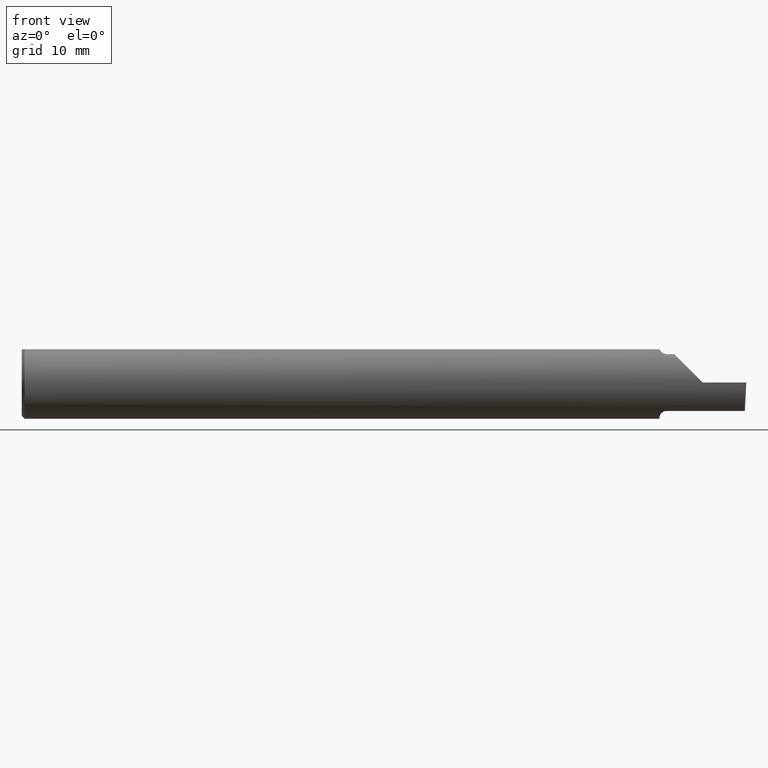
[diagram: clean part render]
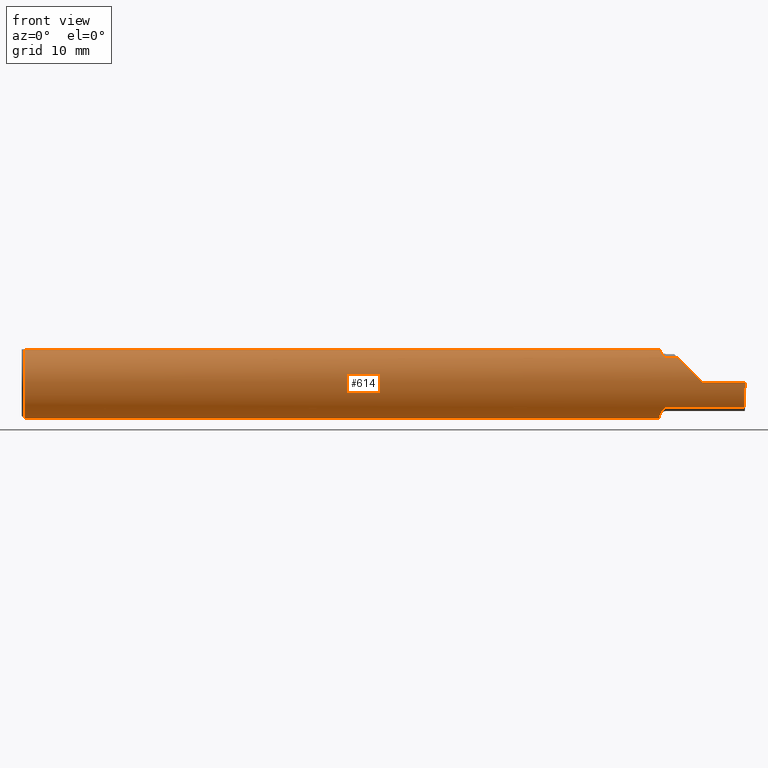
[diagram: same view with one face highlighted and labeled with its STEP entity id]
A machine part, front view. The second image highlights one B-rep face of the part: STEP entity #614.
In plain terms, the highlighted cylindrical surface (edge-blend (fillet) strip) has radius 3.175 mm, axis along (-1, -0, -0).
Its self-contained STEP definition (entity closure, byte-faithful):
#4 = ORIENTED_EDGE ( 'NONE', *, *, #629, .F. ) ;
#10 = EDGE_CURVE ( 'NONE', #241, #186, #70, .T. ) ;
#12 = CARTESIAN_POINT ( 'NONE',  ( 2.220169762358874532, -0.08954173371311453800, 0.08723520050116044533 ) ) ;
#18 = CARTESIAN_POINT ( 'NONE',  ( 2.201278290187167919, -0.04898979485482365254, 0.1149999999999999217 ) ) ;
#20 = CARTESIAN_POINT ( 'NONE',  ( 0.000000000000000000, 0.000000000000000000, 0.000000000000000000 ) ) ;
#21 = ORIENTED_EDGE ( 'NONE', *, *, #397, .T. ) ;
#24 = ORIENTED_EDGE ( 'NONE', *, *, #28, .T. ) ;
#28 = EDGE_CURVE ( 'NONE', #547, #433, #112, .T. ) ;
#30 = ORIENTED_EDGE ( 'NONE', *, *, #436, .F. ) ;
#33 = VERTEX_POINT ( 'NONE', #188 ) ;
#36 = CARTESIAN_POINT ( 'NONE',  ( 2.263691591372603895, -0.09042045454545458161, 0.08630840862739504182 ) ) ;
#39 = LINE ( 'NONE', #43, #253 ) ;
#40 = LINE ( 'NONE', #692, #327 ) ;
#43 = CARTESIAN_POINT ( 'NONE',  ( 2.353741705000000017, -0.09042045454545420691, -0.08630840862739533326 ) ) ;
#48 = DIRECTION ( 'NONE',  ( -1.000000000000000000, -0.000000000000000000, -0.000000000000000000 ) ) ;
#67 = CIRCLE ( 'NONE', #312, 0.1250000000000000000 ) ;
#70 = B_SPLINE_CURVE_WITH_KNOTS ( 'NONE', 3,
 ( #617, #630, #356, #301, #409, #147, #360, #674, #505, #245, #458, #190 ),
 .UNSPECIFIED., .F., .F.,
 ( 4, 2, 2, 2, 2, 4 ),
 ( 1.964009442425878487E-07, 0.0001304774066965714305, 0.0002607584124489002687, 0.0005213204239535722566, 0.001042444446962915256, 0.002084692492981602124 ),
 .UNSPECIFIED. ) ;
#85 = CARTESIAN_POINT ( 'NONE',  ( 2.494705994581233099, -0.1250000000000000278, -0.03254916765648430133 ) ) ;
#96 = DIRECTION ( 'NONE',  ( 1.000000000000000000, 0.000000000000000000, 0.000000000000000000 ) ) ;
#109 = EDGE_CURVE ( 'NONE', #186, #615, #67, .T. ) ;
#112 =( BOUNDED_CURVE ( )  B_SPLINE_CURVE ( 3, ( #411, #296, #564, #616 ),
 .UNSPECIFIED., .F., .T. ) 
 B_SPLINE_CURVE_WITH_KNOTS ( ( 4, 4 ),
 ( 4.712388980384689674, 5.474523801125204869 ),
 .UNSPECIFIED. ) 
 CURVE ( )  GEOMETRIC_REPRESENTATION_ITEM ( )  RATIONAL_B_SPLINE_CURVE ( ( 1.000000000000000000, 0.9521787881681385013, 0.9521787881681385013, 1.000000000000000000 ) ) 
 REPRESENTATION_ITEM ( '' )  );
#129 = CIRCLE ( 'NONE', #620, 0.1250000000000000000 ) ;
#138 = CARTESIAN_POINT ( 'NONE',  ( 0.01000000000000042348, 0.000000000000000000, 0.000000000000000000 ) ) ;
#143 = EDGE_CURVE ( 'NONE', #468, #549, #189, .T. ) ;
#147 = CARTESIAN_POINT ( 'NONE',  ( 2.214104893754834436, -0.08507551663519466456, -0.09161800969921161941 ) ) ;
#148 = VECTOR ( 'NONE', #328, 39.37007874015748143 ) ;
#152 = CARTESIAN_POINT ( 'NONE',  ( 3.749399456654637998E-32, -0.1249999999999999861, 3.061616997868380183E-16 ) ) ;
#153 = CARTESIAN_POINT ( 'NONE',  ( 2.493862026000344123, -0.1128945894460738203, -0.06276352435079129988 ) ) ;
#185 = VECTOR ( 'NONE', #48, 39.37007874015748143 ) ;
#186 = VERTEX_POINT ( 'NONE', #225 ) ;
#188 = CARTESIAN_POINT ( 'NONE',  ( 0.01000000000000042348, -0.04898979485566374442, 0.1149999999999999217 ) ) ;
#189 = B_SPLINE_CURVE_WITH_KNOTS ( 'NONE', 3,
 ( #18, #279, #494, #284, #438, #655, #385, #12, #599, #329 ),
 .UNSPECIFIED., .F., .F.,
 ( 4, 2, 2, 2, 4 ),
 ( 5.067393807208279738E-07, 0.0007430328995835296536, 0.001114295979684933827, 0.001299927519735635372, 0.001485559059786337134 ),
 .UNSPECIFIED. ) ;
#190 = CARTESIAN_POINT ( 'NONE',  ( 2.200000000000000178, -0.02763636363636349721, -0.1219066503721543682 ) ) ;
#196 = DIRECTION ( 'NONE',  ( 1.000000000000000000, -3.022133221983130545E-17, 0.000000000000000000 ) ) ;
#199 = CARTESIAN_POINT ( 'NONE',  ( 0.01000000000000042348, 0.04898979485566374442, 0.1149999999999999217 ) ) ;
#203 = DIRECTION ( 'NONE',  ( 1.000000000000000000, 0.000000000000000000, 0.000000000000000000 ) ) ;
#207 = CARTESIAN_POINT ( 'NONE',  ( 2.493431982762754462, -0.09042045454545420691, -0.08630840862739533326 ) ) ;
#209 =( BOUNDED_CURVE ( )  B_SPLINE_CURVE ( 3, ( #626, #153, #85, #300 ),
 .UNSPECIFIED., .F., .T. ) 
 B_SPLINE_CURVE_WITH_KNOTS ( ( 4, 4 ),
 ( 0.3451966888490691776, 1.107331509589587926 ),
 .UNSPECIFIED. ) 
 CURVE ( )  GEOMETRIC_REPRESENTATION_ITEM ( )  RATIONAL_B_SPLINE_CURVE ( ( 1.000000000000000000, 0.9521787881681380572, 0.9521787881681380572, 1.000000000000000000 ) ) 
 REPRESENTATION_ITEM ( '' )  );
#213 = CARTESIAN_POINT ( 'NONE',  ( 2.225000000000000089, -0.09042045454545417915, -0.08630840862739536101 ) ) ;
#219 = CARTESIAN_POINT ( 'NONE',  ( 2.350000000000000089, -0.1250000000000000278, 1.836970198721028825E-17 ) ) ;
#223 = ORIENTED_EDGE ( 'NONE', *, *, #272, .T. ) ;
#224 = FACE_OUTER_BOUND ( 'NONE', #601, .T. ) ;
#225 = CARTESIAN_POINT ( 'NONE',  ( 2.200000000000000178, -0.02763636363636349721, -0.1219066503721543682 ) ) ;
#237 = ORIENTED_EDGE ( 'NONE', *, *, #512, .T. ) ;
#239 = ORIENTED_EDGE ( 'NONE', *, *, #109, .F. ) ;
#241 = VERTEX_POINT ( 'NONE', #213 ) ;
#245 = CARTESIAN_POINT ( 'NONE',  ( 2.201267035147732809, -0.05364148398375678112, -0.1136671534952896356 ) ) ;
#253 = VECTOR ( 'NONE', #637, 39.37007874015748143 ) ;
#255 = DIRECTION ( 'NONE',  ( 1.000000000000000000, -3.022133221983130545E-17, 0.000000000000000000 ) ) ;
#272 = EDGE_CURVE ( 'NONE', #33, #441, #129, .T. ) ;
#276 = LINE ( 'NONE', #288, #148 ) ;
#278 = DIRECTION ( 'NONE',  ( 0.000000000000000000, 0.000000000000000000, 1.000000000000000000 ) ) ;
#279 = CARTESIAN_POINT ( 'NONE',  ( 2.202426556614087261, -0.05801934803182996064, 0.1111534264545066403 ) ) ;
#282 = CYLINDRICAL_SURFACE ( 'NONE', #619, 0.1250000000000000000 ) ;
#284 = CARTESIAN_POINT ( 'NONE',  ( 2.209055883886138716, -0.07758562614434634519, 0.09811804109501570670 ) ) ;
#288 = CARTESIAN_POINT ( 'NONE',  ( 0.000000000000000000, 0.04898979485566374442, 0.1149999999999999217 ) ) ;
#289 = ORIENTED_EDGE ( 'NONE', *, *, #519, .F. ) ;
#296 = CARTESIAN_POINT ( 'NONE',  ( 2.317450832343515899, -0.1250000000000000278, 0.03254916765648410010 ) ) ;
#300 = CARTESIAN_POINT ( 'NONE',  ( 2.495842809704562626, -0.1250000000000000000, 0.000000000000000000 ) ) ;
#301 = CARTESIAN_POINT ( 'NONE',  ( 2.218701570004387946, -0.08871861273376803469, -0.08806160498138421167 ) ) ;
#312 = AXIS2_PLACEMENT_3D ( 'NONE', #681, #196, #625 ) ;
#319 = ORIENTED_EDGE ( 'NONE', *, *, #10, .F. ) ;
#323 = DIRECTION ( 'NONE',  ( 0.000000000000000000, 0.000000000000000000, -1.000000000000000000 ) ) ;
#327 = VECTOR ( 'NONE', #255, 39.37007874015748143 ) ;
#328 = DIRECTION ( 'NONE',  ( -1.000000000000000000, -0.000000000000000000, -0.000000000000000000 ) ) ;
#329 = CARTESIAN_POINT ( 'NONE',  ( 2.225000000000000089, -0.09042045454545413752, 0.08630840862739540265 ) ) ;
#340 = AXIS2_PLACEMENT_3D ( 'NONE', #138, #203, #414 ) ;
#346 = ORIENTED_EDGE ( 'NONE', *, *, #423, .T. ) ;
#352 = CARTESIAN_POINT ( 'NONE',  ( 0.01000000000000042348, 0.000000000000000000, -0.1250000000000000000 ) ) ;
#356 = CARTESIAN_POINT ( 'NONE',  ( 2.221593478233292007, -0.08999923832592905681, -0.08675238105120967880 ) ) ;
#360 = CARTESIAN_POINT ( 'NONE',  ( 2.212379706860117423, -0.08285324498731268250, -0.09364669410973934516 ) ) ;
#363 = CARTESIAN_POINT ( 'NONE',  ( 2.495842809704562626, -0.1250000000000000000, 0.000000000000000000 ) ) ;
#376 = CARTESIAN_POINT ( 'NONE',  ( 2.225000000000000089, -0.09042045454545413752, 0.08630840862739540265 ) ) ;
#380 = VERTEX_POINT ( 'NONE', #207 ) ;
#385 = CARTESIAN_POINT ( 'NONE',  ( 2.216446811421532104, -0.08721672169474560532, 0.08955973280246690149 ) ) ;
#397 = EDGE_CURVE ( 'NONE', #380, #542, #209, .T. ) ;
#409 = CARTESIAN_POINT ( 'NONE',  ( 2.217439721641150552, -0.08786602687380723475, -0.08891702384475599907 ) ) ;
#411 = CARTESIAN_POINT ( 'NONE',  ( 2.350000000000000089, -0.1250000000000000278, 1.836970198721028825E-17 ) ) ;
#414 = DIRECTION ( 'NONE',  ( 0.000000000000000000, 0.000000000000000000, -1.000000000000000000 ) ) ;
#422 = CARTESIAN_POINT ( 'NONE',  ( 0.01000000000000042348, 0.000000000000000000, 0.000000000000000000 ) ) ;
#423 = EDGE_CURVE ( 'NONE', #441, #453, #634, .T. ) ;
#425 = LINE ( 'NONE', #152, #185 ) ;
#433 = VERTEX_POINT ( 'NONE', #36 ) ;
#434 = DIRECTION ( 'NONE',  ( -1.000000000000000000, -0.000000000000000000, -0.000000000000000000 ) ) ;
#436 = EDGE_CURVE ( 'NONE', #549, #433, #40, .T. ) ;
#438 = CARTESIAN_POINT ( 'NONE',  ( 2.210996102358147919, -0.08116363444194721333, 0.09515685373904909927 ) ) ;
#441 = VERTEX_POINT ( 'NONE', #352 ) ;
#453 = VERTEX_POINT ( 'NONE', #199 ) ;
#458 = CARTESIAN_POINT ( 'NONE',  ( 2.200000000000000622, -0.04088126997068465551, -0.1189040164168497782 ) ) ;
#468 = VERTEX_POINT ( 'NONE', #586 ) ;
#469 = LINE ( 'NONE', #593, #538 ) ;
#494 = CARTESIAN_POINT ( 'NONE',  ( 2.204267307214414551, -0.06631395538221258878, 0.1063681193389239554 ) ) ;
#499 = CARTESIAN_POINT ( 'NONE',  ( 2.200000000000000178, 0.04898979485566374442, 0.1149999999999999217 ) ) ;
#505 = CARTESIAN_POINT ( 'NONE',  ( 2.205932841370987774, -0.07048791403321974514, -0.1034389270157553414 ) ) ;
#507 = EDGE_CURVE ( 'NONE', #380, #241, #39, .T. ) ;
#512 = EDGE_CURVE ( 'NONE', #542, #547, #425, .T. ) ;
#519 = EDGE_CURVE ( 'NONE', #33, #468, #469, .T. ) ;
#535 = ORIENTED_EDGE ( 'NONE', *, *, #143, .F. ) ;
#537 = DIRECTION ( 'NONE',  ( 1.000000000000000000, 0.000000000000000000, 0.000000000000000000 ) ) ;
#538 = VECTOR ( 'NONE', #96, 39.37007874015748143 ) ;
#542 = VERTEX_POINT ( 'NONE', #363 ) ;
#547 = VERTEX_POINT ( 'NONE', #219 ) ;
#549 = VERTEX_POINT ( 'NONE', #376 ) ;
#564 = CARTESIAN_POINT ( 'NONE',  ( 2.287236475649208511, -0.1128945894460739036, 0.06276352435079098069 ) ) ;
#586 = CARTESIAN_POINT ( 'NONE',  ( 2.201278290187167919, -0.04898979485482365254, 0.1149999999999999217 ) ) ;
#593 = CARTESIAN_POINT ( 'NONE',  ( 0.000000000000000000, -0.04898979485566374442, 0.1149999999999999217 ) ) ;
#599 = CARTESIAN_POINT ( 'NONE',  ( 2.222488493957806455, -0.09042045454585179165, 0.08630840862697891636 ) ) ;
#601 = EDGE_LOOP ( 'NONE', ( #660, #21, #237, #24, #30, #535, #289, #223, #346, #4, #239, #319 ) ) ;
#614 = ADVANCED_FACE ( 'NONE', ( #224 ), #282, .T. ) ;
#615 = VERTEX_POINT ( 'NONE', #499 ) ;
#616 = CARTESIAN_POINT ( 'NONE',  ( 2.263691591372603895, -0.09042045454545458161, 0.08630840862739504182 ) ) ;
#617 = CARTESIAN_POINT ( 'NONE',  ( 2.225000000000000089, -0.09042045454545417915, -0.08630840862739536101 ) ) ;
#619 = AXIS2_PLACEMENT_3D ( 'NONE', #20, #434, #278 ) ;
#620 = AXIS2_PLACEMENT_3D ( 'NONE', #422, #537, #323 ) ;
#625 = DIRECTION ( 'NONE',  ( 0.000000000000000000, 1.000000000000000000, 0.000000000000000000 ) ) ;
#626 = CARTESIAN_POINT ( 'NONE',  ( 2.493431982762754462, -0.09042045454545420691, -0.08630840862739533326 ) ) ;
#629 = EDGE_CURVE ( 'NONE', #615, #453, #276, .T. ) ;
#630 = CARTESIAN_POINT ( 'NONE',  ( 2.223259114367880152, -0.09042045454545415140, -0.08630840862739543040 ) ) ;
#634 = CIRCLE ( 'NONE', #340, 0.1250000000000000000 ) ;
#637 = DIRECTION ( 'NONE',  ( -1.000000000000000000, 3.022133221983130545E-17, -0.000000000000000000 ) ) ;
#655 = CARTESIAN_POINT ( 'NONE',  ( 2.214945076695471471, -0.08578123596776296433, 0.09094459933485976588 ) ) ;
#660 = ORIENTED_EDGE ( 'NONE', *, *, #507, .F. ) ;
#674 = CARTESIAN_POINT ( 'NONE',  ( 2.207957287629478405, -0.07583111505166761912, -0.09955951024620263157 ) ) ;
#681 = CARTESIAN_POINT ( 'NONE',  ( 2.200000000000000178, 0.000000000000000000, 0.000000000000000000 ) ) ;
#692 = CARTESIAN_POINT ( 'NONE',  ( 2.353741705000000017, -0.09042045454545420691, 0.08630840862739533326 ) ) ;